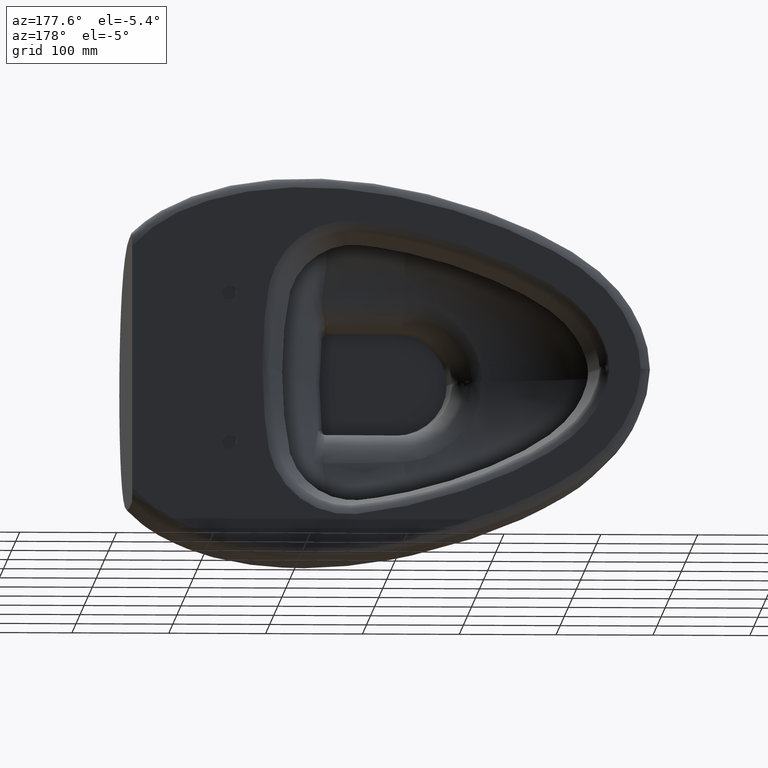
[diagram: clean part render]
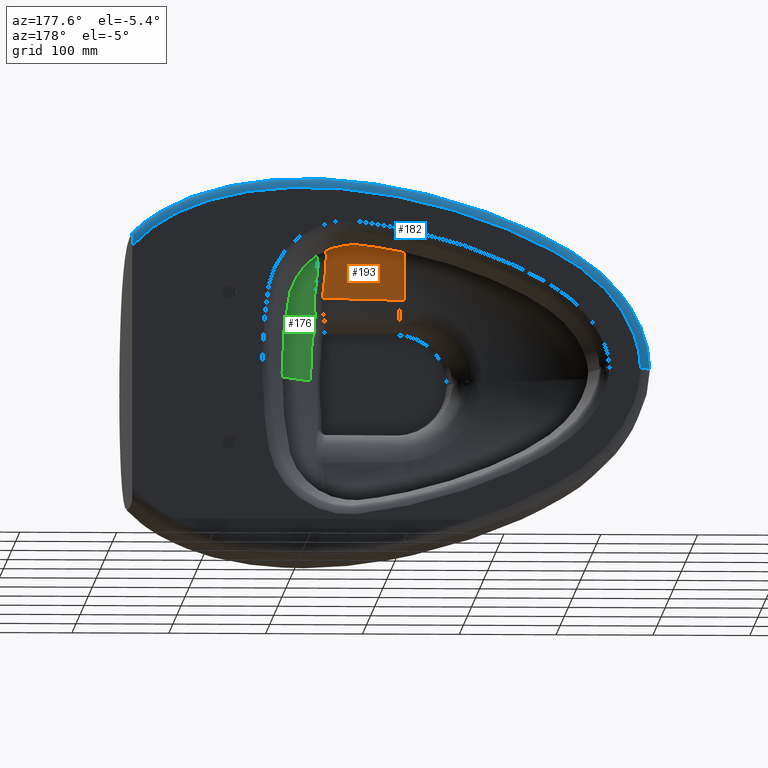
[diagram: same view with three faces highlighted in distinct colors, each labeled with its STEP entity id]
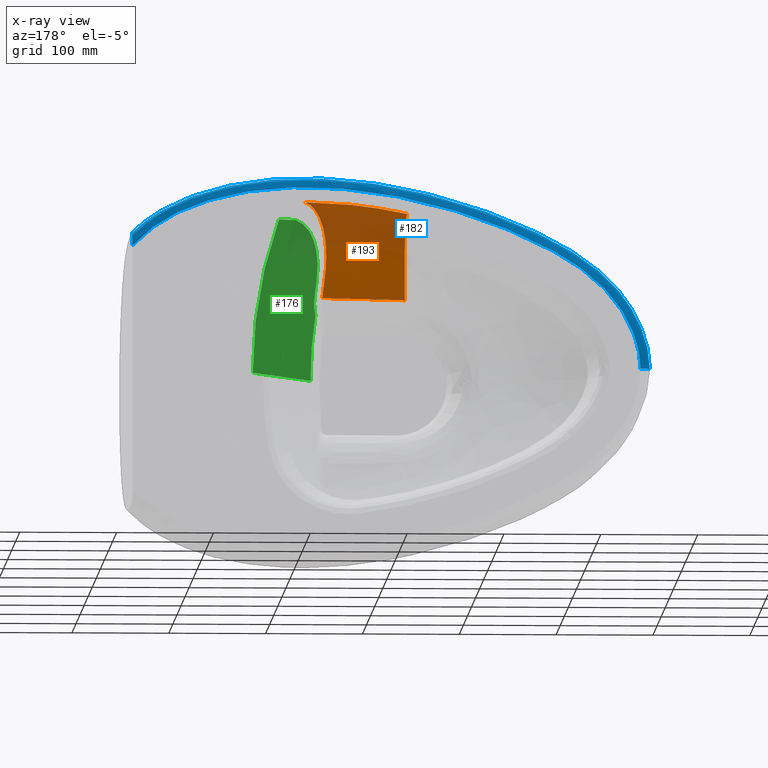
[diagram: x-ray of the same camera — body ghosted, the three highlighted faces saturated]
A machine part, auxiliary view with three faces highlighted in distinct colors.
The next image is the same camera in x-ray (body ghosted, the three faces saturated) — at least one of them is partly hidden behind the body in this view.
Their STEP definitions:

[orange] entity #193 — the highlighted face is a freeform B-spline surface patch.
#100=(
BOUNDED_CURVE()
B_SPLINE_CURVE(3,(#10870,#10871,#10872,#10873,#10874,#10875,#10876,#10877,
#10878,#10879,#10880,#10881,#10882,#10883,#10884,#10885,#10886,#10887,#10888,
#10889,#10890,#10891,#10892,#10893,#10894,#10895,#10896,#10897,#10898,#10899,
#10900,#10901,#10902,#10903,#10904,#10905,#10906,#10907,#10908,#10909),
 .UNSPECIFIED.,.F.,.F.)
B_SPLINE_CURVE_WITH_KNOTS((4,2,2,2,2,2,2,2,2,2,2,2,2,2,2,2,2,2,2,4),(0.,
0.0733649373105409,0.146729874621082,0.220094811931623,0.256777280586894,
0.293459749242164,0.366824686552705,0.440189623863246,0.586919498484329,
0.66028443579487,0.733649373105411,0.807014310415952,0.880379247726493,
0.917061716381763,0.953744185037034,0.972085419364669,0.990426653692304,
0.995011962274214,0.999597270856123,1.),.UNSPECIFIED.)
CURVE()
GEOMETRIC_REPRESENTATION_ITEM()
RATIONAL_B_SPLINE_CURVE((1.,1.,1.,1.,1.,1.,1.,1.,1.,1.,1.,1.,1.,1.,1.,1.,
1.,1.,1.,1.,1.,1.,1.,1.,1.,1.,1.,1.,1.,1.,1.,1.,1.,1.,1.,1.,1.,1.,1.,1.))
REPRESENTATION_ITEM('')
);
#106=(
BOUNDED_CURVE()
B_SPLINE_CURVE(3,(#11148,#11149,#11150,#11151),.UNSPECIFIED.,.F.,.F.)
B_SPLINE_CURVE_WITH_KNOTS((4,4),(0.,1.),.UNSPECIFIED.)
CURVE()
GEOMETRIC_REPRESENTATION_ITEM()
RATIONAL_B_SPLINE_CURVE((0.999999925909502,0.999999925314663,0.99999992470518,
0.999999924082911))
REPRESENTATION_ITEM('')
);
#193=ADVANCED_FACE('',(#287),#228,.F.);
#228=B_SPLINE_SURFACE_WITH_KNOTS('',3,3,((#11168,#11169,#11170,#11171,#11172,
#11173,#11174,#11175,#11176,#11177,#11178,#11179,#11180,#11181,#11182,#11183,
#11184,#11185,#11186,#11187,#11188,#11189,#11190,#11191,#11192,#11193,#11194,
#11195),(#11196,#11197,#11198,#11199,#11200,#11201,#11202,#11203,#11204,
#11205,#11206,#11207,#11208,#11209,#11210,#11211,#11212,#11213,#11214,#11215,
#11216,#11217,#11218,#11219,#11220,#11221,#11222,#11223),(#11224,#11225,
#11226,#11227,#11228,#11229,#11230,#11231,#11232,#11233,#11234,#11235,#11236,
#11237,#11238,#11239,#11240,#11241,#11242,#11243,#11244,#11245,#11246,#11247,
#11248,#11249,#11250,#11251),(#11252,#11253,#11254,#11255,#11256,#11257,
#11258,#11259,#11260,#11261,#11262,#11263,#11264,#11265,#11266,#11267,#11268,
#11269,#11270,#11271,#11272,#11273,#11274,#11275,#11276,#11277,#11278,#11279),
(#11280,#11281,#11282,#11283,#11284,#11285,#11286,#11287,#11288,#11289,
#11290,#11291,#11292,#11293,#11294,#11295,#11296,#11297,#11298,#11299,#11300,
#11301,#11302,#11303,#11304,#11305,#11306,#11307),(#11308,#11309,#11310,
#11311,#11312,#11313,#11314,#11315,#11316,#11317,#11318,#11319,#11320,#11321,
#11322,#11323,#11324,#11325,#11326,#11327,#11328,#11329,#11330,#11331,#11332,
#11333,#11334,#11335)),.UNSPECIFIED.,.F.,.F.,.F.,(4,2,4),(4,2,2,2,2,2,2,
2,2,2,2,2,2,4),(0.,0.5,1.),(0.,0.03125,0.0625,0.125,0.25,0.375,0.5,0.625,
0.75,0.8125,0.875,0.90625,0.9375,1.),.UNSPECIFIED.);
#287=FACE_OUTER_BOUND('',#359,.T.);
#359=EDGE_LOOP('',(#652,#653,#654,#655,#656));
#652=ORIENTED_EDGE('',*,*,#906,.F.);
#653=ORIENTED_EDGE('',*,*,#905,.F.);
#654=ORIENTED_EDGE('',*,*,#890,.F.);
#655=ORIENTED_EDGE('',*,*,#895,.F.);
#656=ORIENTED_EDGE('',*,*,#898,.F.);
#748=VERTEX_POINT('',#9310);
#749=VERTEX_POINT('',#9345);
#751=VERTEX_POINT('',#10717);
#752=VERTEX_POINT('',#10869);
#755=VERTEX_POINT('',#11147);
#890=EDGE_CURVE('',#748,#749,#1017,.T.);
#895=EDGE_CURVE('',#751,#748,#1020,.T.);
#898=EDGE_CURVE('',#752,#751,#100,.T.);
#905=EDGE_CURVE('',#749,#755,#106,.T.);
#906=EDGE_CURVE('',#755,#752,#1022,.T.);
#1017=B_SPLINE_CURVE_WITH_KNOTS('',3,(#9311,#9312,#9313,#9314,#9315,#9316,
#9317,#9318,#9319,#9320,#9321,#9322,#9323,#9324,#9325,#9326,#9327,#9328,
#9329,#9330,#9331,#9332,#9333,#9334,#9335,#9336,#9337,#9338,#9339,#9340,
#9341,#9342,#9343,#9344),.UNSPECIFIED.,.F.,.F.,(4,2,2,2,2,2,2,2,2,2,2,2,
2,2,2,2,4),(0.,0.0020389113980777,0.0104953791248942,0.027408314578527,
0.0612341854857928,0.128885927300324,0.264189410929388,0.331841152743919,
0.365667023651185,0.399492894558451,0.433318765465717,0.467144636372982,
0.534796378187514,0.80540334544564,0.873055087260172,0.940706829074703,
1.),.UNSPECIFIED.);
#1020=B_SPLINE_CURVE_WITH_KNOTS('',3,(#10711,#10712,#10713,#10714,#10715,
#10716),.UNSPECIFIED.,.F.,.F.,(4,2,4),(0.,0.5,1.),.UNSPECIFIED.);
#1022=B_SPLINE_CURVE_WITH_KNOTS('',3,(#11164,#11165,#11166,#11167),
 .UNSPECIFIED.,.F.,.F.,(4,4),(0.,1.),.UNSPECIFIED.);
#9310=CARTESIAN_POINT('',(181.477831717814,362.400251245097,130.001069766108));
#9311=CARTESIAN_POINT('',(181.477619092896,362.400258518679,130.00107034649));
#9312=CARTESIAN_POINT('',(181.477764952534,362.303139636006,130.001021376723));
#9313=CARTESIAN_POINT('',(181.477910684449,362.20602075335,130.000972386122));
#9314=CARTESIAN_POINT('',(181.478660189656,361.706097365586,130.000720097972));
#9315=CARTESIAN_POINT('',(181.479289064875,361.304039475803,130.000448256106));
#9316=CARTESIAN_POINT('',(181.481061036807,360.092091814826,129.999934653857));
#9317=CARTESIAN_POINT('',(181.482001609412,359.272937199923,130.00072811914));
#9318=CARTESIAN_POINT('',(181.486307323191,356.853601146206,130.008136074406));
#9319=CARTESIAN_POINT('',(181.49133761287,355.302339729324,130.011737310897));
#9320=CARTESIAN_POINT('',(181.502717293438,350.747046735134,129.885793774286));
#9321=CARTESIAN_POINT('',(181.5039047704,347.6970056119,129.633008993532));
#9322=CARTESIAN_POINT('',(181.490166626458,338.638581811718,128.391194612539));
#9323=CARTESIAN_POINT('',(181.455878130694,332.694421787433,126.904652796953));
#9324=CARTESIAN_POINT('',(181.390471349515,324.114264495252,123.747154943812));
#9325=CARTESIAN_POINT('',(181.366634718712,321.310149477724,122.541114976472));
#9326=CARTESIAN_POINT('',(181.333060829207,317.213457695841,120.514180215908));
#9327=CARTESIAN_POINT('',(181.322218940559,315.866135443275,119.802204984755));
#9328=CARTESIAN_POINT('',(181.302281848958,313.212103796326,118.307597671317));
#9329=CARTESIAN_POINT('',(181.293348714855,311.90542136821,117.525018498533));
#9330=CARTESIAN_POINT('',(181.277405603107,309.336709256736,115.890966231441));
#9331=CARTESIAN_POINT('',(181.269449005622,308.07436077022,115.039092197716));
#9332=CARTESIAN_POINT('',(181.249511975407,305.597190016369,113.267702878274));
#9333=CARTESIAN_POINT('',(181.238498873925,304.382300719976,112.348375058987));
#9334=CARTESIAN_POINT('',(181.205159846884,300.813742669422,109.494605744216));
#9335=CARTESIAN_POINT('',(181.181681782424,298.536289198797,107.464232342723));
#9336=CARTESIAN_POINT('',(181.054912467029,287.726570982053,96.7357646565077));
#9337=CARTESIAN_POINT('',(180.927161886108,280.969363937749,86.2784500850996));
#9338=CARTESIAN_POINT('',(180.725284852497,275.608219820516,72.0297206576874));
#9339=CARTESIAN_POINT('',(180.68281375739,274.686798987317,69.1214001850093));
#9340=CARTESIAN_POINT('',(180.589372920416,273.166913295598,63.2338985931106));
#9341=CARTESIAN_POINT('',(180.531858291844,272.597482198514,60.2803108403019));
#9342=CARTESIAN_POINT('',(180.46831334866,271.683758124797,54.467030805754));
#9343=CARTESIAN_POINT('',(180.446702697215,271.300941673593,51.7028223586895));
#9344=CARTESIAN_POINT('',(180.424656047957,270.955867803521,48.9456696265172));
#9345=CARTESIAN_POINT('',(180.424775902634,270.957003627898,48.9455343420944));
#10711=CARTESIAN_POINT('',(287.33892159765,358.723215450904,142.047879125219));
#10712=CARTESIAN_POINT('',(269.541174382264,359.378125244022,142.024237732716));
#10713=CARTESIAN_POINT('',(251.766151398022,360.009768694857,140.865522292913));
#10714=CARTESIAN_POINT('',(216.431453431081,361.213044882154,136.746659590526));
#10715=CARTESIAN_POINT('',(198.871725706915,361.810019205169,133.769498734246));
#10716=CARTESIAN_POINT('',(181.477868064864,362.400268680662,130.000904737965));
#10717=CARTESIAN_POINT('',(287.338919787826,358.723180318954,142.048268379986));
#10869=CARTESIAN_POINT('',(265.414819079687,272.497294175486,50.9283604843085));
#10870=CARTESIAN_POINT('',(265.414819079688,272.497294175486,50.9283604843085));
#10871=CARTESIAN_POINT('',(264.975816163034,272.713174832521,54.2199689541216));
#10872=CARTESIAN_POINT('',(264.536234103116,272.987229206952,57.4892975845149));
#10873=CARTESIAN_POINT('',(263.726592540876,273.705596689773,64.0508921599364));
#10874=CARTESIAN_POINT('',(263.345748063014,274.15446598759,67.3718202506522));
#10875=CARTESIAN_POINT('',(262.606525400522,275.315370930929,74.0181926875443));
#10876=CARTESIAN_POINT('',(262.252084294855,276.016704837497,77.3376620948346));
#10877=CARTESIAN_POINT('',(261.89731498802,277.445585953719,82.3888190610239));
#10878=CARTESIAN_POINT('',(261.813726678428,277.98771168398,84.067877549119));
#10879=CARTESIAN_POINT('',(261.710726156362,279.171762190184,87.340588295798));
#10880=CARTESIAN_POINT('',(261.688274724002,279.812640577679,88.944985598095));
#10881=CARTESIAN_POINT('',(261.69643371913,281.881507141924,93.7025357138482));
#10882=CARTESIAN_POINT('',(261.8045542759,283.454721445841,96.7909281967476));
#10883=CARTESIAN_POINT('',(262.24140050217,286.999569206944,102.797733376203));
#10884=CARTESIAN_POINT('',(262.573282601158,288.984198536514,105.731369159623));
#10885=CARTESIAN_POINT('',(263.876542340387,295.405364201731,114.055228793873));
#10886=CARTESIAN_POINT('',(265.148547033961,300.257807956924,118.95895742701));
#10887=CARTESIAN_POINT('',(267.609697670749,308.414355318839,125.402714380358));
#10888=CARTESIAN_POINT('',(268.53279414196,311.272469174767,127.38446947011));
#10889=CARTESIAN_POINT('',(270.546865161105,317.06804940439,130.937850975312));
#10890=CARTESIAN_POINT('',(271.635951218961,320.024960653863,132.526417559343));
#10891=CARTESIAN_POINT('',(273.962745651446,326.1023046778,135.369027309506));
#10892=CARTESIAN_POINT('',(275.198293994576,329.221316094699,136.622084695502));
#10893=CARTESIAN_POINT('',(277.786833147978,335.674461109114,138.782263417387));
#10894=CARTESIAN_POINT('',(279.138765456051,339.004429868386,139.686206099224));
#10895=CARTESIAN_POINT('',(281.181945538328,344.111925913668,140.726580278992));
#10896=CARTESIAN_POINT('',(281.867658175166,345.836639448351,141.021735657725));
#10897=CARTESIAN_POINT('',(283.243894115022,349.341834875985,141.499854917989));
#10898=CARTESIAN_POINT('',(283.93291103258,351.121759964321,141.679087802389));
#10899=CARTESIAN_POINT('',(284.978645897386,353.703753828991,141.859791546235));
#10900=CARTESIAN_POINT('',(285.329035712282,354.552279612281,141.905140709798));
#10901=CARTESIAN_POINT('',(286.039990929032,356.10991556358,141.973966604171));
#10902=CARTESIAN_POINT('',(286.400499670077,356.841289972307,142.000125528227));
#10903=CARTESIAN_POINT('',(286.856602100946,357.791904840897,142.0266048215));
#10904=CARTESIAN_POINT('',(286.948094994786,357.982666356071,142.031511221374));
#10905=CARTESIAN_POINT('',(287.131603806223,358.365594280585,142.040497373215));
#10906=CARTESIAN_POINT('',(287.223310083049,358.524545587653,142.043869849242));
#10907=CARTESIAN_POINT('',(287.322848340905,358.695566213666,142.047656873263));
#10908=CARTESIAN_POINT('',(287.330884361672,358.70937359183,142.047962628979));
#10909=CARTESIAN_POINT('',(287.338919787826,358.723180318953,142.048268379993));
#11147=CARTESIAN_POINT('',(185.4267433941,271.002428619538,49.3130876392372));
#11148=CARTESIAN_POINT('',(180.424764569027,270.958757605897,48.9529795575734));
#11149=CARTESIAN_POINT('',(182.092886547579,270.977664617426,49.1190310621102));
#11150=CARTESIAN_POINT('',(183.760038065514,270.991932274274,49.2390755745105));
#11151=CARTESIAN_POINT('',(185.426743379806,271.002427750254,49.3130803090099));
#11164=CARTESIAN_POINT('',(185.4267433941,271.002428619538,49.3130876392382));
#11165=CARTESIAN_POINT('',(212.01262733199,271.169842975057,50.4935456451162));
#11166=CARTESIAN_POINT('',(238.732501920934,271.674968613628,50.9753958675852));
#11167=CARTESIAN_POINT('',(265.414819173862,272.497291131901,50.928360696481));
#11168=CARTESIAN_POINT('',(305.112678743244,359.147907332884,141.725944059747));
#11169=CARTESIAN_POINT('',(304.140365693269,357.815456568267,141.711977126894));
#11170=CARTESIAN_POINT('',(303.171025937734,356.55488017314,141.699859300723));
#11171=CARTESIAN_POINT('',(301.245865571992,354.020076115581,141.602064886392));
#11172=CARTESIAN_POINT('',(300.289462461324,352.751143060698,141.525485165171));
#11173=CARTESIAN_POINT('',(297.452031578498,348.930594591201,141.207431314794));
#11174=CARTESIAN_POINT('',(295.602005569158,346.36692025741,140.877836075318));
#11175=CARTESIAN_POINT('',(290.205679261798,338.642202459824,139.512401374298));
#11176=CARTESIAN_POINT('',(286.809111073557,333.442374399054,138.097862061697));
#11177=CARTESIAN_POINT('',(280.539508366694,323.177981547194,134.185014687138));
#11178=CARTESIAN_POINT('',(277.664717302627,318.112555132131,131.684727161095));
#11179=CARTESIAN_POINT('',(272.545441560182,308.37749782106,125.557855562598));
#11180=CARTESIAN_POINT('',(270.306269115855,303.708691912897,121.929094564368));
#11181=CARTESIAN_POINT('',(266.653082575682,295.089073196263,113.588660184036));
#11182=CARTESIAN_POINT('',(265.22791254764,291.143113401948,108.878990126222));
#11183=CARTESIAN_POINT('',(263.258413533996,284.298226718048,98.5967549133475));
#11184=CARTESIAN_POINT('',(262.711144281605,281.399587799312,93.0211913864092));
#11185=CARTESIAN_POINT('',(262.563450979575,278.040117050821,84.2904850188029));
#11186=CARTESIAN_POINT('',(262.640118793942,277.116648173287,81.3593405363023));
#11187=CARTESIAN_POINT('',(263.025177133347,275.596340739294,75.2962387120004));
#11188=CARTESIAN_POINT('',(263.317340906911,274.985514338746,72.1864187805268));
#11189=CARTESIAN_POINT('',(263.841137595714,274.223557142476,67.4861014607632));
#11190=CARTESIAN_POINT('',(264.0307705123,273.995939916411,65.9120430557818));
#11191=CARTESIAN_POINT('',(264.430790817891,273.58532237525,62.7523915991924));
#11192=CARTESIAN_POINT('',(264.640584479449,273.402339288117,61.1665473534406));
#11193=CARTESIAN_POINT('',(265.27990801935,272.909368303084,56.3944145774418));
#11194=CARTESIAN_POINT('',(265.722435949147,272.655305415148,53.1948812109593));
#11195=CARTESIAN_POINT('',(266.171596192071,272.456693528016,49.9854339815505));
#11196=CARTESIAN_POINT('',(284.423575505002,359.751452162777,142.582169333482));
#11197=CARTESIAN_POINT('',(283.615205952554,358.388760453094,142.544643596576));
#11198=CARTESIAN_POINT('',(282.808571670173,357.06775914429,142.505397802038));
#11199=CARTESIAN_POINT('',(281.202303049448,354.416320998176,142.384355625801));
#11200=CARTESIAN_POINT('',(280.404283842048,353.124937990283,142.307202606896));
#11201=CARTESIAN_POINT('',(278.038283350106,349.236103230024,141.975805093441));
#11202=CARTESIAN_POINT('',(276.49806502244,346.651498344741,141.627024507113));
#11203=CARTESIAN_POINT('',(272.01058287147,338.849242211169,140.151952288029));
#11204=CARTESIAN_POINT('',(269.193013078996,333.618393270001,138.610296335617));
#11205=CARTESIAN_POINT('',(263.983908439238,323.318367809961,134.449508192021));
#11206=CARTESIAN_POINT('',(261.589201280779,318.242498736471,131.834304137425));
#11207=CARTESIAN_POINT('',(257.302016676139,308.42919616906,125.591899337077));
#11208=CARTESIAN_POINT('',(255.417353985177,303.74382371587,121.983565920043));
#11209=CARTESIAN_POINT('',(252.342681010922,295.077595996712,113.645457426229));
#11210=CARTESIAN_POINT('',(251.138805411612,291.091351319215,108.951603249298));
#11211=CARTESIAN_POINT('',(249.470715529262,284.148661798996,98.7120740721136));
#11212=CARTESIAN_POINT('',(249.003962958327,281.185842330319,93.161125391281));
#11213=CARTESIAN_POINT('',(248.869142911044,277.721010107315,84.4460811706866));
#11214=CARTESIAN_POINT('',(248.928291334153,276.750407718931,81.5031302748581));
#11215=CARTESIAN_POINT('',(249.244307869273,275.141008631908,75.4489971517301));
#11216=CARTESIAN_POINT('',(249.487436784695,274.494606534226,72.3607276623565));
#11217=CARTESIAN_POINT('',(249.922986460932,273.73093526313,67.6790006201087));
#11218=CARTESIAN_POINT('',(250.080566764761,273.51121908422,66.1125066480548));
#11219=CARTESIAN_POINT('',(250.412343009272,273.123413835642,62.9456103503753));
#11220=CARTESIAN_POINT('',(250.586139246991,272.953138611425,61.3412060339106));
#11221=CARTESIAN_POINT('',(251.116307370554,272.477517683407,56.5119275577674));
#11222=CARTESIAN_POINT('',(251.483852951933,272.219653027231,53.3000036255225));
#11223=CARTESIAN_POINT('',(251.856949221879,272.016940835606,50.0757121149629));
#11224=CARTESIAN_POINT('',(263.650602913689,360.426047019787,141.805200846597));
#11225=CARTESIAN_POINT('',(263.006424407757,359.033059150783,141.759043381289));
#11226=CARTESIAN_POINT('',(262.363351864072,357.659380963635,141.710901825563));
#11227=CARTESIAN_POINT('',(261.080345014989,354.905306698244,141.596403173661));
#11228=CARTESIAN_POINT('',(260.443032649382,353.586623448762,141.52750812678));
#11229=CARTESIAN_POINT('',(258.553963630754,349.617620549903,141.213180635959));
#11230=CARTESIAN_POINT('',(257.325093590432,346.998818610852,140.867606436881));
#11231=CARTESIAN_POINT('',(253.74648315455,339.088133643795,139.372065080198));
#11232=CARTESIAN_POINT('',(251.501743066814,333.805104317764,137.784393960819));
#11233=CARTESIAN_POINT('',(247.345967619608,323.434293984036,133.534523672795));
#11234=CARTESIAN_POINT('',(245.431815318777,318.336791288264,130.878772688121));
#11235=CARTESIAN_POINT('',(241.994365525535,308.465502442594,124.623189998477));
#11236=CARTESIAN_POINT('',(240.474627538884,303.772576284774,121.052251059711));
#11237=CARTESIAN_POINT('',(237.994803289204,295.089440151967,112.788277447504));
#11238=CARTESIAN_POINT('',(237.021072994855,291.088358332576,108.148207962322));
#11239=CARTESIAN_POINT('',(235.666828552964,284.099387346987,98.0369179887353));
#11240=CARTESIAN_POINT('',(235.284845570505,281.100994963885,92.5594703879298));
#11241=CARTESIAN_POINT('',(235.165931541277,277.561680848239,83.9451001187069));
#11242=CARTESIAN_POINT('',(235.209591443999,276.554659564806,81.0242844722405));
#11243=CARTESIAN_POINT('',(235.455978114903,274.87042474567,75.0385145945052));
#11244=CARTESIAN_POINT('',(235.647284057061,274.1901163026,71.9950868366595));
#11245=CARTESIAN_POINT('',(235.990885294793,273.405174598709,67.3727423366911));
#11246=CARTESIAN_POINT('',(236.115177014574,273.183354839225,65.8272847891405));
#11247=CARTESIAN_POINT('',(236.378112126912,272.796740631871,62.6879453740575));
#11248=CARTESIAN_POINT('',(236.516659980618,272.628567856898,61.0879516382836));
#11249=CARTESIAN_POINT('',(236.940433482099,272.147204883094,56.2688296885241));
#11250=CARTESIAN_POINT('',(237.234026082727,271.875637748759,53.0748579196663));
#11251=CARTESIAN_POINT('',(237.532107930616,271.657832491013,49.8684773344822));
#11252=CARTESIAN_POINT('',(222.332570200727,361.840793272631,137.717436495867));
#11253=CARTESIAN_POINT('',(222.014040733991,360.387045355036,137.677261597071));
#11254=CARTESIAN_POINT('',(221.695547317653,358.925470990976,137.634679822151));
#11255=CARTESIAN_POINT('',(221.05773985278,356.001381666799,137.562025400638));
#11256=CARTESIAN_POINT('',(220.741923567115,354.621349509588,137.521626845299));
#11257=CARTESIAN_POINT('',(219.805235911087,350.476115181396,137.286650021065));
#11258=CARTESIAN_POINT('',(219.195881026711,347.765430206516,136.987687175211));
#11259=CARTESIAN_POINT('',(217.41781582808,339.585436001604,135.6024857468));
#11260=CARTESIAN_POINT('',(216.298217536822,334.160822420318,134.060816881757));
#11261=CARTESIAN_POINT('',(214.212444357437,323.59006121049,129.902000147599));
#11262=CARTESIAN_POINT('',(213.244786365321,318.434058420852,127.290618515338));
#11263=CARTESIAN_POINT('',(211.500718373907,308.504821592913,121.165494736929));
#11264=CARTESIAN_POINT('',(210.720908764546,303.815677874809,117.681337907671));
#11265=CARTESIAN_POINT('',(209.436253638746,295.160157502856,109.662150213967));
#11266=CARTESIAN_POINT('',(208.925163179819,291.18086970252,105.181152528408));
#11267=CARTESIAN_POINT('',(208.196992150362,284.199968224773,95.4453067702691));
#11268=CARTESIAN_POINT('',(207.980287502703,281.185862750013,90.1852099852216));
#11269=CARTESIAN_POINT('',(207.880606979144,277.556867186507,81.8994318511642));
#11270=CARTESIAN_POINT('',(207.888740101285,276.497780207396,79.0746374821049));
#11271=CARTESIAN_POINT('',(207.983794935405,274.69100993003,73.3159216067303));
#11272=CARTESIAN_POINT('',(208.0643985513,273.945130960884,70.3968110826537));
#11273=CARTESIAN_POINT('',(208.211753760344,273.082115483925,65.9586029152266));
#11274=CARTESIAN_POINT('',(208.265182602966,272.838419708429,64.4771046758016));
#11275=CARTESIAN_POINT('',(208.382178526702,272.413072287264,61.4501543350131));
#11276=CARTESIAN_POINT('',(208.446104098486,272.226939017202,59.8974696706058));
#11277=CARTESIAN_POINT('',(208.646000489787,271.685428849603,55.2104670125559));
#11278=CARTESIAN_POINT('',(208.78653365149,271.366983001158,52.0988771693968));
#11279=CARTESIAN_POINT('',(208.92896789158,271.09709209688,48.9797887800764));
#11280=CARTESIAN_POINT('',(201.791947182935,362.578069228826,134.397097187648));
#11281=CARTESIAN_POINT('',(201.634916067623,361.093866160438,134.371646533369));
#11282=CARTESIAN_POINT('',(201.477617748822,359.59686733512,134.343834784594));
#11283=CARTESIAN_POINT('',(201.162221062433,356.604713235482,134.307005940012));
#11284=CARTESIAN_POINT('',(201.007224842627,355.190637132449,134.286751132539));
#11285=CARTESIAN_POINT('',(200.546028737965,350.949446819937,134.11386585327));
#11286=CARTESIAN_POINT('',(200.244715155439,348.181406389914,133.858101473593));
#11287=CARTESIAN_POINT('',(199.358164249924,339.841087670514,132.603536526491));
#11288=CARTESIAN_POINT('',(198.790813670653,334.327293837117,131.154057275205));
#11289=CARTESIAN_POINT('',(197.721382636119,323.627707586365,127.175817059045));
#11290=CARTESIAN_POINT('',(197.219388036911,318.434934563855,124.649628319375));
#11291=CARTESIAN_POINT('',(196.318543283718,308.506055313352,118.668621902299));
#11292=CARTESIAN_POINT('',(195.913255851177,303.828644305141,115.234217039219));
#11293=CARTESIAN_POINT('',(195.227974130353,295.218192458315,107.386472884702));
#11294=CARTESIAN_POINT('',(194.948901100003,291.275762016268,103.01117870079));
#11295=CARTESIAN_POINT('',(194.531952463866,284.349583002596,93.523467687933));
#11296=CARTESIAN_POINT('',(194.395266154173,281.35547652522,88.4077127754835));
#11297=CARTESIAN_POINT('',(194.298270388609,277.711469504604,80.3506064844998));
#11298=CARTESIAN_POINT('',(194.286206579126,276.636783838508,77.5999828795438));
#11299=CARTESIAN_POINT('',(194.299206638416,274.782428960867,72.000435808431));
#11300=CARTESIAN_POINT('',(194.320701829342,274.005026943554,69.1609684343827));
#11301=CARTESIAN_POINT('',(194.363531734152,273.085328084984,64.8477102654308));
#11302=CARTESIAN_POINT('',(194.379322059219,272.821873357768,63.4091924885817));
#11303=CARTESIAN_POINT('',(194.419200775341,272.356547950014,60.4672597980145));
#11304=CARTESIAN_POINT('',(194.443809878021,272.150271051708,58.9575956964516));
#11305=CARTESIAN_POINT('',(194.526424042012,271.554163313841,54.3929190954656));
#11306=CARTESIAN_POINT('',(194.587909011307,271.20257250011,51.3459760138609));
#11307=CARTESIAN_POINT('',(194.649789121762,270.895675446246,48.2964863696741));
#11308=CARTESIAN_POINT('',(181.476451731326,363.327914970524,130.001540278732));
#11309=CARTESIAN_POINT('',(181.478694464568,361.813201989491,130.000769398939));
#11310=CARTESIAN_POINT('',(181.480588468917,360.288466857038,129.997876629799));
#11311=CARTESIAN_POINT('',(181.485605749254,357.243612662585,130.0075040214));
#11312=CARTESIAN_POINT('',(181.49045650004,355.793028584715,130.010676210798));
#11313=CARTESIAN_POINT('',(181.500909365177,351.450464819798,129.915336068548));
#11314=CARTESIAN_POINT('',(181.503913490042,348.616039191186,129.718891091309));
#11315=CARTESIAN_POINT('',(181.494893344422,340.094917903415,128.660498355256));
#11316=CARTESIAN_POINT('',(181.466852806658,334.475536958317,127.367724069562));
#11317=CARTESIAN_POINT('',(181.388881709419,323.620234532169,123.692553696813));
#11318=CARTESIAN_POINT('',(181.340956598608,318.383572711263,121.306096705353));
#11319=CARTESIAN_POINT('',(181.267743682708,308.487359155279,115.533436005099));
#11320=CARTESIAN_POINT('',(181.238415139733,303.83284584042,112.149687912572));
#11321=CARTESIAN_POINT('',(181.146772054059,295.299655841457,104.509754048126));
#11322=CARTESIAN_POINT('',(181.096140869409,291.420505326765,100.259974406261));
#11323=CARTESIAN_POINT('',(180.982031566044,284.598367041287,91.0662314471292));
#11324=CARTESIAN_POINT('',(180.919817020036,281.650855974706,86.1224211832019));
#11325=CARTESIAN_POINT('',(180.814465274157,278.019189365906,78.3445384917823));
#11326=CARTESIAN_POINT('',(180.777647346897,276.939152103447,75.6897373643304));
#11327=CARTESIAN_POINT('',(180.699879113144,275.048730922777,70.2847895748781));
#11328=CARTESIAN_POINT('',(180.658743882974,274.237845775185,67.5355059787816));
#11329=CARTESIAN_POINT('',(180.589901376414,273.241133818467,63.3711166096764));
#11330=CARTESIAN_POINT('',(180.5655093018,272.948626788365,61.9839093020359));
#11331=CARTESIAN_POINT('',(180.522075093525,272.42384835304,59.1525255072856));
#11332=CARTESIAN_POINT('',(180.503465198476,272.188175782213,57.7050999001612));
#11333=CARTESIAN_POINT('',(180.45792452287,271.517651768174,53.3185484980186));
#11334=CARTESIAN_POINT('',(180.435897504771,271.122691634709,50.3554999896467));
#11335=CARTESIAN_POINT('',(180.412256823366,270.768223905066,47.3982243396899));

[blue] entity #182 — the highlighted face is a freeform B-spline surface patch.
#66=(
BOUNDED_SURFACE()
B_SPLINE_SURFACE(3,2,((#9055,#9056,#9057,#9058,#9059),(#9060,#9061,#9062,
#9063,#9064),(#9065,#9066,#9067,#9068,#9069),(#9070,#9071,#9072,#9073,#9074),
(#9075,#9076,#9077,#9078,#9079),(#9080,#9081,#9082,#9083,#9084),(#9085,
#9086,#9087,#9088,#9089),(#9090,#9091,#9092,#9093,#9094),(#9095,#9096,#9097,
#9098,#9099),(#9100,#9101,#9102,#9103,#9104),(#9105,#9106,#9107,#9108,#9109),
(#9110,#9111,#9112,#9113,#9114),(#9115,#9116,#9117,#9118,#9119),(#9120,
#9121,#9122,#9123,#9124),(#9125,#9126,#9127,#9128,#9129),(#9130,#9131,#9132,
#9133,#9134),(#9135,#9136,#9137,#9138,#9139),(#9140,#9141,#9142,#9143,#9144),
(#9145,#9146,#9147,#9148,#9149),(#9150,#9151,#9152,#9153,#9154),(#9155,
#9156,#9157,#9158,#9159),(#9160,#9161,#9162,#9163,#9164),(#9165,#9166,#9167,
#9168,#9169),(#9170,#9171,#9172,#9173,#9174),(#9175,#9176,#9177,#9178,#9179),
(#9180,#9181,#9182,#9183,#9184),(#9185,#9186,#9187,#9188,#9189),(#9190,
#9191,#9192,#9193,#9194),(#9195,#9196,#9197,#9198,#9199),(#9200,#9201,#9202,
#9203,#9204),(#9205,#9206,#9207,#9208,#9209),(#9210,#9211,#9212,#9213,#9214),
(#9215,#9216,#9217,#9218,#9219),(#9220,#9221,#9222,#9223,#9224),(#9225,
#9226,#9227,#9228,#9229),(#9230,#9231,#9232,#9233,#9234),(#9235,#9236,#9237,
#9238,#9239),(#9240,#9241,#9242,#9243,#9244),(#9245,#9246,#9247,#9248,#9249),
(#9250,#9251,#9252,#9253,#9254),(#9255,#9256,#9257,#9258,#9259),(#9260,
#9261,#9262,#9263,#9264),(#9265,#9266,#9267,#9268,#9269),(#9270,#9271,#9272,
#9273,#9274),(#9275,#9276,#9277,#9278,#9279),(#9280,#9281,#9282,#9283,#9284),
(#9285,#9286,#9287,#9288,#9289),(#9290,#9291,#9292,#9293,#9294),(#9295,
#9296,#9297,#9298,#9299),(#9300,#9301,#9302,#9303,#9304)),.UNSPECIFIED.,
 .F.,.F.,.F.)
B_SPLINE_SURFACE_WITH_KNOTS((4,2,2,2,2,2,2,2,2,2,2,2,2,2,2,2,2,2,2,2,2,
2,2,2,4),(3,2,3),(0.,0.015625,0.03125,0.0625,0.09375,0.109375,0.125,0.1875,
0.21875,0.25,0.3125,0.375,0.4375,0.5,0.625,0.6875,0.71875,0.75,0.8125,0.84375,
0.875,0.9375,0.953125,0.96875,1.),(0.,0.0099009900990099,1.),
 .UNSPECIFIED.)
GEOMETRIC_REPRESENTATION_ITEM()
RATIONAL_B_SPLINE_SURFACE(((1.,1.,1.,0.707106781186528,1.),(1.,1.,1.,0.707106781186528,
1.),(1.,1.,1.,0.707106781186532,1.),(1.,1.,1.,0.707106781186532,1.),(1.,
1.,1.,0.707106781186536,1.),(1.,1.,1.,0.707106781186536,1.),(1.,1.,1.,0.707106781186536,
1.),(1.,1.,1.,0.707106781186536,1.),(1.,1.,1.,0.707106781186541,1.),(1.,
1.,1.,0.707106781186541,1.),(1.,1.,1.,0.707106781186543,1.),(1.,1.,1.,0.707106781186543,
1.),(1.,1.,1.,0.707106781186543,1.),(1.,1.,1.,0.707106781186543,1.),(1.,
1.,1.,0.70710678118655,1.),(1.,1.,1.,0.70710678118655,1.),(1.,1.,1.,0.70710678118655,
1.),(1.,1.,1.,0.70710678118655,1.),(1.,1.,1.,0.707106781186554,1.),(1.,
1.,1.,0.707106781186554,1.),(1.,1.,1.,0.70710678118656,1.),(1.,1.,1.,0.70710678118656,
1.),(1.,1.,1.,0.707106781186557,1.),(1.,1.,1.,0.707106781186557,1.),(1.,
1.,1.,0.707106781186561,1.),(1.,1.,1.,0.707106781186561,1.),(1.,1.,1.,0.707106781186557,
1.),(1.,1.,1.,0.707106781186557,1.),(1.,1.,1.,0.707106781186563,1.),(1.,
1.,1.,0.707106781186563,1.),(1.,1.,1.,0.707106781186564,1.),(1.,1.,1.,0.707106781186564,
1.),(1.,1.,1.,0.707106781186565,1.),(1.,1.,1.,0.707106781186565,1.),(1.,
1.,1.,0.707106781186566,1.),(1.,1.,1.,0.707106781186566,1.),(1.,1.,1.,0.707106781186568,
1.),(1.,1.,1.,0.707106781186568,1.),(1.,1.,1.,0.707106781186566,1.),(1.,
1.,1.,0.707106781186566,1.),(1.,1.,1.,0.70710678118657,1.),(1.,1.,1.,0.70710678118657,
1.),(1.,1.,1.,0.707106781186571,1.),(1.,1.,1.,0.707106781186571,1.),(1.,
1.,1.,0.707106781186574,1.),(1.,1.,1.,0.707106781186574,1.),(1.,1.,1.,0.707106781186574,
1.),(1.,1.,1.,0.707106781186574,1.),(1.,1.,1.,0.707106781186574,1.),(1.,
1.,1.,0.707106781186574,1.)))
REPRESENTATION_ITEM('')
SURFACE()
);
#79=(
BOUNDED_CURVE()
B_SPLINE_CURVE(2,(#3901,#3902,#3903),.UNSPECIFIED.,.F.,.F.)
B_SPLINE_CURVE_WITH_KNOTS((3,3),(0.,1.),.UNSPECIFIED.)
CURVE()
GEOMETRIC_REPRESENTATION_ITEM()
RATIONAL_B_SPLINE_CURVE((1.,0.707106781186528,1.))
REPRESENTATION_ITEM('')
);
#96=(
BOUNDED_CURVE()
B_SPLINE_CURVE(3,(#8893,#8894,#8895,#8896,#8897,#8898,#8899,#8900,#8901,
#8902,#8903,#8904,#8905,#8906,#8907,#8908,#8909,#8910,#8911,#8912,#8913,
#8914,#8915,#8916,#8917,#8918,#8919,#8920,#8921,#8922,#8923,#8924,#8925,
#8926,#8927,#8928,#8929,#8930,#8931,#8932,#8933,#8934,#8935,#8936,#8937,
#8938,#8939,#8940,#8941,#8942),.UNSPECIFIED.,.F.,.F.)
B_SPLINE_CURVE_WITH_KNOTS((4,2,2,2,2,2,2,2,2,2,2,2,2,2,2,2,2,2,2,2,2,2,
2,2,4),(0.,0.0159759441991335,0.031951888398267,0.063903776796534,0.095855665194801,
0.111831609393934,0.127807553593068,0.191711330389602,0.223663218787869,
0.255615107186136,0.31951888398267,0.383422660779204,0.447326437575738,
0.511230214372272,0.63903776796534,0.702941544761874,0.734893433160141,
0.766845321558408,0.830749098354942,0.862700986753209,0.894652875151476,
0.95855665194801,0.974532596147143,0.990508540346277,1.),.UNSPECIFIED.)
CURVE()
GEOMETRIC_REPRESENTATION_ITEM()
RATIONAL_B_SPLINE_CURVE((1.,1.,1.,1.,1.,1.,1.,1.,1.,1.,1.,1.,1.,1.,1.,1.,
1.,1.,1.,1.,1.,1.,1.,1.,1.,1.,1.,1.,1.,1.,1.,1.,1.,1.,1.,1.,1.,1.,1.,1.,
1.,1.,1.,1.,1.,1.,1.,1.,1.,1.))
REPRESENTATION_ITEM('')
);
#182=ADVANCED_FACE('',(#277),#66,.F.);
#277=FACE_OUTER_BOUND('',#347,.T.);
#347=EDGE_LOOP('',(#600,#601,#602,#603));
#600=ORIENTED_EDGE('',*,*,#848,.F.);
#601=ORIENTED_EDGE('',*,*,#888,.T.);
#602=ORIENTED_EDGE('',*,*,#819,.F.);
#603=ORIENTED_EDGE('',*,*,#887,.T.);
#710=VERTEX_POINT('',#3789);
#711=VERTEX_POINT('',#3904);
#725=VERTEX_POINT('',#6483);
#726=VERTEX_POINT('',#6504);
#819=EDGE_CURVE('',#710,#711,#79,.T.);
#848=EDGE_CURVE('',#725,#726,#985,.T.);
#887=EDGE_CURVE('',#710,#726,#96,.T.);
#888=EDGE_CURVE('',#725,#711,#1015,.T.);
#985=B_SPLINE_CURVE_WITH_KNOTS('',3,(#6484,#6485,#6486,#6487,#6488,#6489,
#6490,#6491,#6492,#6493,#6494,#6495,#6496,#6497,#6498,#6499,#6500,#6501,
#6502,#6503),.UNSPECIFIED.,.F.,.F.,(4,2,2,1,2,2,1,2,2,2,4),(0.,0.249999999999987,
0.312499999999985,0.374999999999983,0.499999999999982,0.562499999999982,
0.624999999999981,0.749999999999986,0.812499999999991,0.874999999999997,
1.),.UNSPECIFIED.);
#1015=B_SPLINE_CURVE_WITH_KNOTS('',3,(#9017,#9018,#9019,#9020,#9021,#9022,
#9023,#9024,#9025,#9026,#9027,#9028,#9029,#9030,#9031,#9032,#9033,#9034,
#9035,#9036,#9037,#9038,#9039,#9040,#9041,#9042,#9043,#9044,#9045,#9046,
#9047,#9048,#9049,#9050,#9051,#9052,#9053,#9054),.UNSPECIFIED.,.F.,.F.,
(4,2,2,2,2,2,2,2,2,2,2,2,2,2,2,2,2,2,4),(0.,0.03125,0.0625000000000001,
0.125,0.1875,0.25,0.3125,0.375,0.5,0.625,0.6875,0.75,0.78125,0.8125,0.875,
0.90625,0.9375,0.96875,1.),.UNSPECIFIED.);
#3789=CARTESIAN_POINT('',(-67.1264671881526,409.445535359124,-34.6856978603639));
#3901=CARTESIAN_POINT('',(-67.1264671913483,409.445535360289,-34.6846846846847));
#3902=CARTESIAN_POINT('',(-67.1264671913483,419.445535360289,-34.6846846846851));
#3903=CARTESIAN_POINT('',(-57.1264671913478,419.445535360289,-34.6846846846851));
#3904=CARTESIAN_POINT('',(-57.1264671884628,419.445535359166,-34.6856922284373));
#6483=CARTESIAN_POINT('',(467.873199259275,419.445727674407,90.703032421736));
#6484=CARTESIAN_POINT('',(467.873199259275,419.445727674408,90.7030324217361));
#6485=CARTESIAN_POINT('',(467.873194860324,419.445730210693,92.3566880178331));
#6486=CARTESIAN_POINT('',(467.873190626706,419.263025002579,93.9481916906725));
#6487=CARTESIAN_POINT('',(467.873185541349,418.80625881194,95.8598813776498));
#6488=CARTESIAN_POINT('',(467.873184392725,418.68879761385,96.2916729886109));
#6489=CARTESIAN_POINT('',(467.873182308054,418.444385329307,97.0753435933792));
#6490=CARTESIAN_POINT('',(467.873179262072,418.042169054165,98.2203905569434));
#6491=CARTESIAN_POINT('',(467.873176459166,417.533159234046,99.2740606897426));
#6492=CARTESIAN_POINT('',(467.87317381831,416.952953717275,100.266812935365));
#6493=CARTESIAN_POINT('',(467.873172745749,416.694481395557,100.67001064141));
#6494=CARTESIAN_POINT('',(467.873170949787,416.208594569585,101.345149792282));
#6495=CARTESIAN_POINT('',(467.873168412729,415.445751665294,102.298882548208));
#6496=CARTESIAN_POINT('',(467.873166346323,414.58087076501,103.075687392992));
#6497=CARTESIAN_POINT('',(467.873164593685,413.647964534064,103.734540297013));
#6498=CARTESIAN_POINT('',(467.873163971147,413.268102925939,103.968565507084));
#6499=CARTESIAN_POINT('',(467.87316299316,412.553563296893,104.336211375873));
#6500=CARTESIAN_POINT('',(467.873162580421,412.188390389947,104.491368651615));
#6501=CARTESIAN_POINT('',(467.873161570968,411.069162391836,104.870843502885));
#6502=CARTESIAN_POINT('',(467.87316119153,410.24736240832,105.01348273237));
#6503=CARTESIAN_POINT('',(467.873161192057,409.44574962282,105.013284987186));
#6504=CARTESIAN_POINT('',(467.873202338969,409.445749622758,105.013260586983));
#8893=CARTESIAN_POINT('',(-67.1264671886531,409.445535358735,-34.686711036043));
#8894=CARTESIAN_POINT('',(-67.1264772422751,409.445541155155,-30.9073491185788));
#8895=CARTESIAN_POINT('',(-66.8748052872465,409.445546735656,-27.2690640401292));
#8896=CARTESIAN_POINT('',(-66.0359780977198,409.44555771208,-20.112362169886));
#8897=CARTESIAN_POINT('',(-65.4421664523293,409.445563102623,-16.5978078973911));
#8898=CARTESIAN_POINT('',(-63.2079610683451,409.445579079821,-6.18073842940255));
#8899=CARTESIAN_POINT('',(-61.1063111261635,409.445589513667,0.622089953190214));
#8900=CARTESIAN_POINT('',(-55.8326688944857,409.445609802178,13.8501218595221));
#8901=CARTESIAN_POINT('',(-52.7051805211513,409.445619487796,20.1651098675973));
#8902=CARTESIAN_POINT('',(-47.3616018602334,409.445633405125,29.2391584777892));
#8903=CARTESIAN_POINT('',(-45.4710838682658,409.445637941576,32.1969080771311));
#8904=CARTESIAN_POINT('',(-41.4802470163963,409.445646815713,37.9828135387851));
#8905=CARTESIAN_POINT('',(-39.3724221213136,409.445651166712,40.8196503649947));
#8906=CARTESIAN_POINT('',(-28.4611665535312,409.445672186259,54.5243231233499));
#8907=CARTESIAN_POINT('',(-18.4972889391409,409.445686828796,64.0712117740019));
#8908=CARTESIAN_POINT('',(-2.25237892397115,409.445706218433,76.7131964859013));
#8909=CARTESIAN_POINT('',(3.39373465866891,409.445712273128,80.6608401572794));
#8910=CARTESIAN_POINT('',(14.8090988331836,409.445723545725,88.0105424643989));
#8911=CARTESIAN_POINT('',(20.585975368225,409.445728781613,91.4244451264252));
#8912=CARTESIAN_POINT('',(38.067669368276,409.445743675148,101.134639287073));
#8913=CARTESIAN_POINT('',(49.9331248692557,409.445752543204,106.916827774532));
#8914=CARTESIAN_POINT('',(74.0145137019071,409.445768901751,117.582564762477));
#8915=CARTESIAN_POINT('',(86.2316492608702,409.445776369192,122.451323234657));
#8916=CARTESIAN_POINT('',(110.999810183129,409.445790094956,131.400497393184));
#8917=CARTESIAN_POINT('',(123.56864038096,409.445796356447,135.48298208106));
#8918=CARTESIAN_POINT('',(148.97760449817,409.445807660348,142.853112535908));
#8919=CARTESIAN_POINT('',(161.734651450093,409.445812666292,146.116985601116));
#8920=CARTESIAN_POINT('',(200.182911107616,409.445825736248,154.638593558017));
#8921=CARTESIAN_POINT('',(226.04732342314,409.445831893882,158.653382511703));
#8922=CARTESIAN_POINT('',(265.322593535549,409.445836485121,161.646903565791));
#8923=CARTESIAN_POINT('',(278.494944094429,409.445837231719,162.133701730778));
#8924=CARTESIAN_POINT('',(298.401641254956,409.445836955042,161.953335941345));
#8925=CARTESIAN_POINT('',(305.061998140794,409.445836629046,161.740797440517));
#8926=CARTESIAN_POINT('',(318.438250827615,409.445835457246,160.976805924765));
#8927=CARTESIAN_POINT('',(325.147168452536,409.445834610121,160.424611745928));
#8928=CARTESIAN_POINT('',(345.150355965074,409.445831241793,158.228148521931));
#8929=CARTESIAN_POINT('',(358.387819225318,409.445827891882,156.044510836946));
#8930=CARTESIAN_POINT('',(378.067753370967,409.445820897225,151.483696261193));
#8931=CARTESIAN_POINT('',(384.593246425083,409.445818240101,149.751389058712));
#8932=CARTESIAN_POINT('',(397.602077484221,409.445812173406,145.795946395215));
#8933=CARTESIAN_POINT('',(404.031917485964,409.445808780679,143.583911597484));
#8934=CARTESIAN_POINT('',(423.013552117695,409.445797281709,136.086656007397));
#8935=CARTESIAN_POINT('',(435.280708747149,409.445787879574,129.956519453794));
#8936=CARTESIAN_POINT('',(449.780192165396,409.445772776487,120.109388556017));
#8937=CARTESIAN_POINT('',(452.635062145191,409.445769582176,118.026714858166));
#8938=CARTESIAN_POINT('',(458.133080641949,409.445762981451,113.723076922113));
#8939=CARTESIAN_POINT('',(460.792665959859,409.44575956178,111.493469039171));
#8940=CARTESIAN_POINT('',(464.899406440577,409.445753933696,107.823987402873));
#8941=CARTESIAN_POINT('',(466.400617416546,409.445751797127,106.430985690609));
#8942=CARTESIAN_POINT('',(467.873363200145,409.445749622681,105.013292684703));
#9017=CARTESIAN_POINT('',(467.873199259275,419.445727674402,90.703032421736));
#9018=CARTESIAN_POINT('',(463.446691448278,419.445735071376,95.5258230200295));
#9019=CARTESIAN_POINT('',(458.760368720217,419.445742018338,100.05520716048));
#9020=CARTESIAN_POINT('',(448.830262497678,419.445754946712,108.484440421955));
#9021=CARTESIAN_POINT('',(443.543936407475,419.445760946598,112.396333866986));
#9022=CARTESIAN_POINT('',(427.130907086106,419.445777129904,122.947760117041));
#9023=CARTESIAN_POINT('',(415.490093288154,419.445785642927,128.49820070006));
#9024=CARTESIAN_POINT('',(391.275340871665,419.445799629956,137.617652744337));
#9025=CARTESIAN_POINT('',(378.68316709681,419.44580512554,141.200734048177));
#9026=CARTESIAN_POINT('',(353.393997422872,419.445813676139,146.775654919723));
#9027=CARTESIAN_POINT('',(340.606028487494,419.445816725607,148.763877726029));
#9028=CARTESIAN_POINT('',(314.785965638304,419.445820737447,151.379545740419));
#9029=CARTESIAN_POINT('',(301.776025418227,419.445821684659,151.997106459684));
#9030=CARTESIAN_POINT('',(276.035385601439,419.445821785352,152.062722476102));
#9031=CARTESIAN_POINT('',(263.236722415421,419.445820949727,151.517881431452));
#9032=CARTESIAN_POINT('',(225.023604853779,419.445816181807,148.409165339424));
#9033=CARTESIAN_POINT('',(199.789186132762,419.445810023534,144.393962043728));
#9034=CARTESIAN_POINT('',(149.722741933908,419.445792731759,133.119727544835));
#9035=CARTESIAN_POINT('',(124.765097046156,419.445781519777,125.809527736998));
#9036=CARTESIAN_POINT('',(88.5100636315138,419.445761266842,112.604647831433));
#9037=CARTESIAN_POINT('',(76.5950232345005,419.445753931066,107.821736321251));
#9038=CARTESIAN_POINT('',(53.1589685696766,419.44573790384,97.3720188002416));
#9039=CARTESIAN_POINT('',(41.6328604224174,419.445729229914,91.716639574843));
#9040=CARTESIAN_POINT('',(24.7667098331442,419.445714763624,82.284654847208));
#9041=CARTESIAN_POINT('',(19.2163375212301,419.445709694915,78.9798693628522));
#9042=CARTESIAN_POINT('',(8.32051860843461,419.445698852433,71.9106011923603));
#9043=CARTESIAN_POINT('',(2.97173189457601,419.445693066243,68.1380217507568));
#9044=CARTESIAN_POINT('',(-12.3180720253502,419.445674666764,56.1416171104924));
#9045=CARTESIAN_POINT('',(-21.5930970352815,419.445660901906,47.1669736074394));
#9046=CARTESIAN_POINT('',(-33.7293848918116,419.445637355636,31.814886346696));
#9047=CARTESIAN_POINT('',(-37.4411536316816,419.445629071519,26.4136706418972));
#9048=CARTESIAN_POINT('',(-43.9961747353958,419.445611887457,15.2097238736239));
#9049=CARTESIAN_POINT('',(-46.8639206208567,419.445602945376,9.37952050552592));
#9050=CARTESIAN_POINT('',(-51.6861053870577,419.445584281007,-2.78957831696623));
#9051=CARTESIAN_POINT('',(-53.5977858826664,419.445574720005,-9.02331464610132));
#9052=CARTESIAN_POINT('',(-56.2946735022484,419.445555324631,-21.6690218451211));
#9053=CARTESIAN_POINT('',(-57.1264847237297,419.445545468912,-28.0949116491833));
#9054=CARTESIAN_POINT('',(-57.1264671886676,419.445535358744,-34.6866997721894));
#9055=CARTESIAN_POINT('',(-56.9850458324308,419.445535358744,-34.6866993959892));
#9056=CARTESIAN_POINT('',(-57.0557565105492,419.445535358744,-34.6866995840893));
#9057=CARTESIAN_POINT('',(-57.1264671886676,419.445535358744,-34.6866997721894));
#9058=CARTESIAN_POINT('',(-67.1264671886327,419.445535358723,-34.6867263735633));
#9059=CARTESIAN_POINT('',(-67.1264671886531,409.445535358735,-34.686711036043));
#9060=CARTESIAN_POINT('',(-56.9850546372157,419.445540435842,-31.3764592717406));
#9061=CARTESIAN_POINT('',(-57.0557653240293,419.445540440853,-31.3731885258213));
#9062=CARTESIAN_POINT('',(-57.1264760108428,419.445540445865,-31.369917779902));
#9063=CARTESIAN_POINT('',(-67.1264772404851,419.445541154592,-30.9073644560838));
#9064=CARTESIAN_POINT('',(-67.1264772422751,409.445541155155,-30.9073491185788));
#9065=CARTESIAN_POINT('',(-56.7623069864953,419.445545448608,-28.1081486888926));
#9066=CARTESIAN_POINT('',(-56.8328159996987,419.445545457582,-28.1022983097493));
#9067=CARTESIAN_POINT('',(-56.903325012902,419.445545466556,-28.0964479306061));
#9068=CARTESIAN_POINT('',(-66.8748052870758,419.445546735644,-27.269079377667));
#9069=CARTESIAN_POINT('',(-66.8748052872465,409.445546735656,-27.2690640401292));
#9070=CARTESIAN_POINT('',(-56.0035358865123,419.445555377628,-21.6344689849073));
#9071=CARTESIAN_POINT('',(-56.0734867116512,419.445555393904,-21.6238562594565));
#9072=CARTESIAN_POINT('',(-56.1434375367901,419.445555410181,-21.6132435340058));
#9073=CARTESIAN_POINT('',(-66.0359780978495,419.445557712068,-20.1123775073886));
#9074=CARTESIAN_POINT('',(-66.0359780977198,409.44555771208,-20.112362169886));
#9075=CARTESIAN_POINT('',(-55.4629381899984,419.445560293451,-18.4293706368809));
#9076=CARTESIAN_POINT('',(-55.5325179828832,419.445560313038,-18.416600241662));
#9077=CARTESIAN_POINT('',(-55.6020977757681,419.445560332625,-18.4038298464431));
#9078=CARTESIAN_POINT('',(-65.4421664522556,419.445563102611,-16.5978232348952));
#9079=CARTESIAN_POINT('',(-65.4421664523293,409.445563102623,-16.5978078973911));
#9080=CARTESIAN_POINT('',(-53.4186554421109,419.445574912477,-8.89782284332955));
#9081=CARTESIAN_POINT('',(-53.486911006576,419.445574941534,-8.87887818161628));
#9082=CARTESIAN_POINT('',(-53.555166571041,419.445574970591,-8.859933519903));
#9083=CARTESIAN_POINT('',(-63.2079610684308,419.445579079809,-6.18075376695473));
#9084=CARTESIAN_POINT('',(-63.2079610683451,409.445579079821,-6.18073842940255));
#9085=CARTESIAN_POINT('',(-51.4851807390965,419.445584525726,-2.63002207349439));
#9086=CARTESIAN_POINT('',(-51.5522637080449,419.445584560504,-2.60734695191929));
#9087=CARTESIAN_POINT('',(-51.6193466769932,419.445584595282,-2.58467183034421));
#9088=CARTESIAN_POINT('',(-61.1063111260943,419.445589513656,0.622074615650733));
#9089=CARTESIAN_POINT('',(-61.1063111261635,409.445589513667,0.622089953190214));
#9090=CARTESIAN_POINT('',(-46.613035365654,419.445603269616,9.59092345563912));
#9091=CARTESIAN_POINT('',(-46.6773189128936,419.445603315163,9.62062044901669));
#9092=CARTESIAN_POINT('',(-46.7416024601333,419.445603360711,9.65031744239428));
#9093=CARTESIAN_POINT('',(-55.8326688945138,419.445609802166,13.8501065220215));
#9094=CARTESIAN_POINT('',(-55.8326688944857,409.445609802178,13.8501218595221));
#9095=CARTESIAN_POINT('',(-43.7156496743433,419.445612248034,15.4448189118968));
#9096=CARTESIAN_POINT('',(-43.778328839306,419.445612298513,15.4777308557105));
#9097=CARTESIAN_POINT('',(-43.8410080042687,419.445612348992,15.5106427995243));
#9098=CARTESIAN_POINT('',(-52.7051805211168,419.445619487785,20.1650945300691));
#9099=CARTESIAN_POINT('',(-52.7051805211513,409.445619487796,20.1651098675973));
#9100=CARTESIAN_POINT('',(-38.7482383239372,419.445625185637,23.8800895275048));
#9101=CARTESIAN_POINT('',(-38.8082946765074,419.445625242947,23.9174553268067));
#9102=CARTESIAN_POINT('',(-38.8683510290775,419.445625300256,23.9548211261086));
#9103=CARTESIAN_POINT('',(-47.3616018602196,419.445633405115,29.2391431402732));
#9104=CARTESIAN_POINT('',(-47.3616018602334,409.445633405125,29.2391584777892));
#9105=CARTESIAN_POINT('',(-36.9882788884592,419.445629409325,26.6339194130087));
#9106=CARTESIAN_POINT('',(-37.047424926416,419.445629468816,26.6727070348284));
#9107=CARTESIAN_POINT('',(-37.1065709643727,419.445629528307,26.711494656648));
#9108=CARTESIAN_POINT('',(-45.4710838682854,419.445637941564,32.1968927396004));
#9109=CARTESIAN_POINT('',(-45.4710838682658,409.445637941576,32.1969080771311));
#9110=CARTESIAN_POINT('',(-33.2667080872053,419.445637684714,32.0294436160484));
#9111=CARTESIAN_POINT('',(-33.3239766777738,419.445637748379,32.0709531564781));
#9112=CARTESIAN_POINT('',(-33.3812452683423,419.445637812045,32.1124626969079));
#9113=CARTESIAN_POINT('',(-41.4802470163351,419.445646815701,37.9827982012754));
#9114=CARTESIAN_POINT('',(-41.4802470163963,409.445646815713,37.9828135387851));
#9115=CARTESIAN_POINT('',(-31.2980573184537,419.44564174891,34.6792846560676));
#9116=CARTESIAN_POINT('',(-31.3543555226726,419.445641814574,34.7220980175675));
#9117=CARTESIAN_POINT('',(-31.4106537268914,419.445641880239,34.7649113790674));
#9118=CARTESIAN_POINT('',(-39.372422121244,419.445651166609,40.8196350274679));
#9119=CARTESIAN_POINT('',(-39.3724221213136,409.445651166712,40.8196503649947));
#9120=CARTESIAN_POINT('',(-21.0890304377545,419.44566141567,47.5019494462029));
#9121=CARTESIAN_POINT('',(-21.1404323789253,419.44566149077,47.5509125750136));
#9122=CARTESIAN_POINT('',(-21.1918343200962,419.44566156587,47.5998757038243));
#9123=CARTESIAN_POINT('',(-28.4611665537059,419.445672186612,54.5243077858582));
#9124=CARTESIAN_POINT('',(-28.4611665535312,409.445672186259,54.5243231233499));
#9125=CARTESIAN_POINT('',(-11.7266234454041,419.44567520068,56.4897284428126));
#9126=CARTESIAN_POINT('',(-11.7738316553342,419.445675281756,56.54258994261));
#9127=CARTESIAN_POINT('',(-11.8210398652643,419.445675362833,56.5954514424073));
#9128=CARTESIAN_POINT('',(-18.4972889391118,419.445686828785,64.0711964364852));
#9129=CARTESIAN_POINT('',(-18.4972889391409,409.445686828796,64.0712117740019));
#9130=CARTESIAN_POINT('',(3.70488208336971,419.44569361945,68.4987119826397));
#9131=CARTESIAN_POINT('',(3.66334530555911,419.445693707296,68.5559870592479));
#9132=CARTESIAN_POINT('',(3.62180852774851,419.445693795142,68.6132621358561));
#9133=CARTESIAN_POINT('',(-2.25237892395425,419.445706218422,76.7131811483795));
#9134=CARTESIAN_POINT('',(-2.25237892397115,409.445706218433,76.7131964859013));
#9135=CARTESIAN_POINT('',(9.10160386499601,419.445699410072,72.2741805853699));
#9136=CARTESIAN_POINT('',(9.06180596211787,419.445699499759,72.3326561461528));
#9137=CARTESIAN_POINT('',(9.02200805923973,419.445699589446,72.3911317069357));
#9138=CARTESIAN_POINT('',(3.39373465881289,419.445712273116,80.6608248195858));
#9139=CARTESIAN_POINT('',(3.39373465866891,409.445712273128,80.6608401572794));
#9140=CARTESIAN_POINT('',(20.0812244360561,419.445710252375,79.3433324242668));
#9141=CARTESIAN_POINT('',(20.0444647390257,419.445710345062,79.4037641126163));
#9142=CARTESIAN_POINT('',(20.0077050419953,419.44571043775,79.4641958009657));
#9143=CARTESIAN_POINT('',(14.8090988330815,419.445723545714,88.0105271270522));
#9144=CARTESIAN_POINT('',(14.8090988331836,409.445723545725,88.0105424643989));
#9145=CARTESIAN_POINT('',(25.6735370685657,419.445715323155,82.649466385617));
#9146=CARTESIAN_POINT('',(25.6380642363897,419.445715416993,82.7106494871674));
#9147=CARTESIAN_POINT('',(25.6025914042137,419.445715510832,82.7718325887179));
#9148=CARTESIAN_POINT('',(20.5859753683095,419.445728781601,91.4244297887905));
#9149=CARTESIAN_POINT('',(20.585975368225,409.445728781613,91.4244451264252));
#9150=CARTESIAN_POINT('',(42.6657145447817,419.445729799112,92.0877589512343));
#9151=CARTESIAN_POINT('',(42.6336548481141,419.445729895862,92.150837876409));
#9152=CARTESIAN_POINT('',(42.6015951514466,419.445729992612,92.2139168015837));
#9153=CARTESIAN_POINT('',(38.0676693681696,419.445743675135,101.134623949781));
#9154=CARTESIAN_POINT('',(38.067669368276,409.445743675148,101.134639287073));
#9155=CARTESIAN_POINT('',(54.2765133101487,419.445738481906,97.7489169108227));
#9156=CARTESIAN_POINT('',(54.246229197972,419.445738579947,97.8128397167896));
#9157=CARTESIAN_POINT('',(54.2159450857954,419.445738677989,97.8767625227566));
#9158=CARTESIAN_POINT('',(49.9331248693307,419.445752543192,106.916812437093));
#9159=CARTESIAN_POINT('',(49.9331248692557,409.445752543204,106.916827774532));
#9160=CARTESIAN_POINT('',(77.8849011762004,419.44575451914,108.205160005535));
#9161=CARTESIAN_POINT('',(77.8579150454325,419.445754619422,108.270543499774));
#9162=CARTESIAN_POINT('',(77.8309289146647,419.445754719704,108.335926994014));
#9163=CARTESIAN_POINT('',(74.0145137018741,419.445768901739,117.582549424877));
#9164=CARTESIAN_POINT('',(74.0145137019071,409.445768901751,117.582564762477));
#9165=CARTESIAN_POINT('',(89.8875195828005,419.445761856546,112.989134230882));
#9166=CARTESIAN_POINT('',(89.8620291647915,419.445761957735,113.055108880087));
#9167=CARTESIAN_POINT('',(89.8365387467824,419.445762058923,113.121083529292));
#9168=CARTESIAN_POINT('',(86.2316492608861,419.445776369181,122.45130789715));
#9169=CARTESIAN_POINT('',(86.2316492608702,409.445776369192,122.451323234657));
#9170=CARTESIAN_POINT('',(114.236380699617,419.445775349944,121.786807961266));
#9171=CARTESIAN_POINT('',(114.213813833696,419.445775452753,121.853838941495));
#9172=CARTESIAN_POINT('',(114.191246967775,419.445775555562,121.920869921724));
#9173=CARTESIAN_POINT('',(110.999810183156,419.445790094945,131.400482055649));
#9174=CARTESIAN_POINT('',(110.999810183129,409.445790094956,131.400497393184));
#9175=CARTESIAN_POINT('',(126.600845299318,419.44578150985,125.803058275869));
#9176=CARTESIAN_POINT('',(126.579703364827,419.445781613368,125.870551072768));
#9177=CARTESIAN_POINT('',(126.558561430335,419.445781716885,125.938043869668));
#9178=CARTESIAN_POINT('',(123.568640381021,419.445796356435,135.482966743401));
#9179=CARTESIAN_POINT('',(123.56864038096,409.445796356447,135.48298208106));
#9180=CARTESIAN_POINT('',(151.595749783416,419.445792629544,133.053086490785));
#9181=CARTESIAN_POINT('',(151.577494864108,419.445792734346,133.121416696027));
#9182=CARTESIAN_POINT('',(151.559239944799,419.445792839147,133.189746901268));
#9183=CARTESIAN_POINT('',(148.977604498151,419.445807660336,142.853097198526));
#9184=CARTESIAN_POINT('',(148.97760449817,409.445807660348,142.853112535908));
#9185=CARTESIAN_POINT('',(164.144617788948,419.445797553616,136.263584672122));
#9186=CARTESIAN_POINT('',(164.127814389495,419.445797658993,136.33228703173));
#9187=CARTESIAN_POINT('',(164.111010990041,419.445797764371,136.400989391338));
#9188=CARTESIAN_POINT('',(161.734651449916,419.445812666997,146.116970263861));
#9189=CARTESIAN_POINT('',(161.734651450093,409.445812666292,146.116985601116));
#9190=CARTESIAN_POINT('',(201.946399425549,419.445810403838,144.641908321384));
#9191=CARTESIAN_POINT('',(201.934103569731,419.445810510733,144.711609725421));
#9192=CARTESIAN_POINT('',(201.921807713913,419.445810617627,144.781311129457));
#9193=CARTESIAN_POINT('',(200.182911108034,419.445825734803,154.638578219965));
#9194=CARTESIAN_POINT('',(200.182911107616,409.445825736248,154.638593558017));
#9195=CARTESIAN_POINT('',(227.351352748333,419.445816446769,148.581922814702));
#9196=CARTESIAN_POINT('',(227.34226045302,419.445816554474,148.652145580848));
#9197=CARTESIAN_POINT('',(227.333168157707,419.445816662178,148.722368346994));
#9198=CARTESIAN_POINT('',(226.047323423197,419.445831893869,158.653367174063));
#9199=CARTESIAN_POINT('',(226.04732342314,409.445831893882,158.653382511703));
#9200=CARTESIAN_POINT('',(265.82667884875,419.445820944494,151.514472952272));
#9201=CARTESIAN_POINT('',(265.823164132906,419.44582105285,151.585120835836));
#9202=CARTESIAN_POINT('',(265.819649417061,419.445821161207,151.6557687194));
#9203=CARTESIAN_POINT('',(265.322593535553,419.445836485108,161.646888228329));
#9204=CARTESIAN_POINT('',(265.322593535549,409.445836485121,161.646903565791));
#9205=CARTESIAN_POINT('',(278.713832249991,419.445821673601,151.989865523356));
#9206=CARTESIAN_POINT('',(278.712306060577,419.445821782079,152.060592931994));
#9207=CARTESIAN_POINT('',(278.710779871164,419.445821890558,152.131320340633));
#9208=CARTESIAN_POINT('',(278.494944094451,419.445837231707,162.133686393383));
#9209=CARTESIAN_POINT('',(278.494944094429,409.445837231719,162.133701730778));
#9210=CARTESIAN_POINT('',(298.154372425773,419.445821403403,151.813723376219));
#9211=CARTESIAN_POINT('',(298.156096498363,419.445821511836,151.884421335669));
#9212=CARTESIAN_POINT('',(298.157820570954,419.445821620269,151.955119295119));
#9213=CARTESIAN_POINT('',(298.401641254977,419.44583695503,161.953320603761));
#9214=CARTESIAN_POINT('',(298.401641254956,409.445836955042,161.953335941345));
#9215=CARTESIAN_POINT('',(304.652929297857,419.445821085094,151.606196812105));
#9216=CARTESIAN_POINT('',(304.655781514944,419.445821193474,151.676859826017));
#9217=CARTESIAN_POINT('',(304.658633732032,419.445821301853,151.747522839928));
#9218=CARTESIAN_POINT('',(305.06199814082,419.445836629035,161.740782103073));
#9219=CARTESIAN_POINT('',(305.061998140794,409.445836629046,161.740797440517));
#9220=CARTESIAN_POINT('',(317.690739682989,419.445819942942,150.861535601476));
#9221=CARTESIAN_POINT('',(317.695951676267,419.445820051115,150.932063835562));
#9222=CARTESIAN_POINT('',(317.701163669545,419.445820159288,151.002592069649));
#9223=CARTESIAN_POINT('',(318.438250827632,419.445835457234,160.976790587167));
#9224=CARTESIAN_POINT('',(318.438250827615,409.445835457246,160.976805924765));
#9225=CARTESIAN_POINT('',(324.223139936532,419.445819117997,150.323682809475));
#9226=CARTESIAN_POINT('',(324.229582690529,419.445819226016,150.394111048784));
#9227=CARTESIAN_POINT('',(324.236025444525,419.445819334034,150.464539288093));
#9228=CARTESIAN_POINT('',(325.147168452569,419.445834610108,160.424596408517));
#9229=CARTESIAN_POINT('',(325.147168452536,409.445834610121,160.424611745928));
#9230=CARTESIAN_POINT('',(343.67761648174,419.445815841531,148.187471155629));
#9231=CARTESIAN_POINT('',(343.687885102271,419.445815948909,148.257479293134));
#9232=CARTESIAN_POINT('',(343.698153722803,419.445816056286,148.327487430639));
#9233=CARTESIAN_POINT('',(345.150355965071,419.445831241781,158.228133184192));
#9234=CARTESIAN_POINT('',(345.150355965074,409.445831241793,158.228148521931));
#9235=CARTESIAN_POINT('',(356.521858337409,419.44581258884,146.066734419606));
#9236=CARTESIAN_POINT('',(356.534868679362,419.445812695535,146.136303982613));
#9237=CARTESIAN_POINT('',(356.547879021315,419.445812802229,146.205873545619));
#9238=CARTESIAN_POINT('',(358.387819225453,419.445827891146,156.044495498835));
#9239=CARTESIAN_POINT('',(358.387819225318,409.445827891882,156.044510836946));
#9240=CARTESIAN_POINT('',(375.566350550959,419.445805819484,141.653183182893));
#9241=CARTESIAN_POINT('',(375.583791487829,419.445805924615,141.721725957825));
#9242=CARTESIAN_POINT('',(375.601232424699,419.445806029747,141.790268732758));
#9243=CARTESIAN_POINT('',(378.06775337093,419.445820897576,151.483680923966));
#9244=CARTESIAN_POINT('',(378.067753370967,409.445820897225,151.483696261193));
#9245=CARTESIAN_POINT('',(381.877722557056,419.445803248929,139.977196898459));
#9246=CARTESIAN_POINT('',(381.896656444864,419.445803353455,140.045346977913));
#9247=CARTESIAN_POINT('',(381.915590332672,419.445803457982,140.113497057366));
#9248=CARTESIAN_POINT('',(384.59324642534,419.445818240271,149.751373721368));
#9249=CARTESIAN_POINT('',(384.593246425083,409.445818240101,149.751389058712));
#9250=CARTESIAN_POINT('',(394.417158972661,419.445797401142,136.164477557688));
#9251=CARTESIAN_POINT('',(394.439365696924,419.44579750414,136.231632504152));
#9252=CARTESIAN_POINT('',(394.461572421186,419.445797607137,136.298787450615));
#9253=CARTESIAN_POINT('',(397.602077484006,419.445812173212,145.795931057518));
#9254=CARTESIAN_POINT('',(397.602077484221,409.445812173406,145.795946395215));
#9255=CARTESIAN_POINT('',(400.588827340867,419.445794142719,134.0400095916));
#9256=CARTESIAN_POINT('',(400.612834157113,419.445794244781,134.106553981634));
#9257=CARTESIAN_POINT('',(400.636840973359,419.445794346844,134.173098371667));
#9258=CARTESIAN_POINT('',(404.031917485852,419.445808780668,143.583896260175));
#9259=CARTESIAN_POINT('',(404.031917485964,409.445808780679,143.583911597484));
#9260=CARTESIAN_POINT('',(418.723150448935,419.445783157045,126.877420176266));
#9261=CARTESIAN_POINT('',(418.753065112843,419.445783255529,126.941631119007));
#9262=CARTESIAN_POINT('',(418.782979776751,419.445783354013,127.005842061747));
#9263=CARTESIAN_POINT('',(423.01355211798,419.445797281698,136.086640669452));
#9264=CARTESIAN_POINT('',(423.013552117695,409.445797281709,136.086656007397));
#9265=CARTESIAN_POINT('',(430.322107237903,419.445774242205,121.064999707454));
#9266=CARTESIAN_POINT('',(430.356680900007,419.445774337293,121.126995386776));
#9267=CARTESIAN_POINT('',(430.391254562111,419.445774432382,121.188991066099));
#9268=CARTESIAN_POINT('',(435.280708746957,419.445787879926,129.956504116679));
#9269=CARTESIAN_POINT('',(435.280708747149,409.445787879574,129.956519453794));
#9270=CARTESIAN_POINT('',(443.89775620346,419.445760101416,111.845278663829));
#9271=CARTESIAN_POINT('',(443.938771266463,419.445760189792,111.90289975159));
#9272=CARTESIAN_POINT('',(443.979786329466,419.445760278168,111.960520839351));
#9273=CARTESIAN_POINT('',(449.78019216547,419.445772776383,120.109373218395));
#9274=CARTESIAN_POINT('',(449.780192165396,409.445772776487,120.109388556017));
#9275=CARTESIAN_POINT('',(446.561807631374,419.445757120504,109.901740596162));
#9276=CARTESIAN_POINT('',(446.604153169537,419.445757207392,109.958391565986));
#9277=CARTESIAN_POINT('',(446.646498707699,419.445757294281,110.015042535811));
#9278=CARTESIAN_POINT('',(452.63506214528,419.445769582163,118.026699520572));
#9279=CARTESIAN_POINT('',(452.635062145191,409.445769582176,118.026714858166));
#9280=CARTESIAN_POINT('',(451.704336828088,419.445750946567,105.876366045243));
#9281=CARTESIAN_POINT('',(451.749161001994,419.445751030479,105.931076834105));
#9282=CARTESIAN_POINT('',(451.7939851759,419.445751114392,105.985787622968));
#9283=CARTESIAN_POINT('',(458.1330806419,419.445762981438,113.723061584666));
#9284=CARTESIAN_POINT('',(458.133080641949,409.445762981451,113.723076922113));
#9285=CARTESIAN_POINT('',(454.195503046011,419.445747743737,103.78813687846));
#9286=CARTESIAN_POINT('',(454.241501515743,419.445747826137,103.841861909552));
#9287=CARTESIAN_POINT('',(454.287499985475,419.445747908538,103.895586940644));
#9288=CARTESIAN_POINT('',(460.792665959807,419.445759561677,111.49345370157));
#9289=CARTESIAN_POINT('',(460.792665959859,409.44575956178,111.493469039171));
#9290=CARTESIAN_POINT('',(461.444095143815,419.445737809899,97.3113274195954));
#9291=CARTESIAN_POINT('',(461.493440393842,419.445737887714,97.3620620136512));
#9292=CARTESIAN_POINT('',(461.54278564387,419.44573796553,97.4127966077069));
#9293=CARTESIAN_POINT('',(468.521257826631,419.445748970298,104.587751707221));
#9294=CARTESIAN_POINT('',(468.521257826467,409.445748970129,104.587767044579));
#9295=CARTESIAN_POINT('',(465.977646800976,419.445730754999,92.7115613584782));
#9296=CARTESIAN_POINT('',(466.028989205264,419.445730829685,92.76025917992));
#9297=CARTESIAN_POINT('',(466.080331609553,419.445730904372,92.8089570013617));
#9298=CARTESIAN_POINT('',(473.341244056521,419.445741466633,99.6958689554627));
#9299=CARTESIAN_POINT('',(473.341244056234,409.445741466646,99.6958842927764));
#9300=CARTESIAN_POINT('',(470.238900027151,419.445723306316,87.8550619073739));
#9301=CARTESIAN_POINT('',(470.292051097226,419.445723377845,87.9016984139959));
#9302=CARTESIAN_POINT('',(470.3452021673,419.445723449374,87.9483349206179));
#9303=CARTESIAN_POINT('',(477.861898582736,419.445733565064,94.5437329372707));
#9304=CARTESIAN_POINT('',(477.861898582716,409.445733565076,94.5437482747914));

[green] entity #176 — the highlighted face is a freeform B-spline surface patch.
#92=(
BOUNDED_CURVE()
B_SPLINE_CURVE(3,(#7583,#7584,#7585,#7586),.UNSPECIFIED.,.F.,.F.)
B_SPLINE_CURVE_WITH_KNOTS((4,4),(0.,1.),.UNSPECIFIED.)
CURVE()
GEOMETRIC_REPRESENTATION_ITEM()
RATIONAL_B_SPLINE_CURVE((1.,1.,1.,1.))
REPRESENTATION_ITEM('')
);
#93=(
BOUNDED_CURVE()
B_SPLINE_CURVE(3,(#7599,#7600,#7601,#7602,#7603,#7604),.UNSPECIFIED.,.F.,
 .F.)
B_SPLINE_CURVE_WITH_KNOTS((4,2,4),(0.,0.5,1.),.UNSPECIFIED.)
CURVE()
GEOMETRIC_REPRESENTATION_ITEM()
RATIONAL_B_SPLINE_CURVE((1.,1.,1.,1.,1.,1.))
REPRESENTATION_ITEM('')
);
#94=(
BOUNDED_CURVE()
B_SPLINE_CURVE(3,(#7606,#7607,#7608,#7609,#7610,#7611,#7612,#7613,#7614,
#7615,#7616,#7617,#7618,#7619,#7620,#7621,#7622,#7623,#7624,#7625,#7626,
#7627,#7628,#7629,#7630,#7631,#7632,#7633,#7634,#7635,#7636,#7637,#7638,
#7639,#7640,#7641,#7642,#7643,#7644,#7645,#7646,#7647,#7648,#7649,#7650,
#7651,#7652,#7653,#7654,#7655,#7656,#7657),.UNSPECIFIED.,.F.,.F.)
B_SPLINE_CURVE_WITH_KNOTS((4,2,2,2,2,2,2,2,2,2,2,2,2,2,2,2,2,2,2,2,2,2,
2,2,2,4),(0.,0.015624966546887,0.0238280918256629,0.0320312171044389,0.0484374676619908,
0.0812499687770945,0.0976562193346454,0.105859344613421,0.109960907252809,
0.114062469892198,0.13046872044975,0.146874971007302,0.179687472122406,
0.21249997323751,0.278124975467717,0.343749977697925,0.409374979928132,
0.47499998215834,0.606249986618755,0.671874988848962,0.73749999107917,0.770312492194274,
0.803124993309377,0.868749995539585,0.934374997769793,1.),.UNSPECIFIED.)
CURVE()
GEOMETRIC_REPRESENTATION_ITEM()
RATIONAL_B_SPLINE_CURVE((1.,1.,1.,1.,1.,1.,1.,1.,1.,1.,1.,1.,1.,1.,1.,1.,
1.,1.,1.,1.,1.,1.,1.,1.,1.,1.,1.,1.,1.,1.,1.,1.,1.,1.,1.,1.,1.,1.,1.,1.,
1.,1.,1.,1.,1.,1.,1.,1.,1.,1.,1.,1.))
REPRESENTATION_ITEM('')
);
#176=ADVANCED_FACE('',(#272),#220,.F.);
#220=B_SPLINE_SURFACE_WITH_KNOTS('',3,3,((#7665,#7666,#7667,#7668,#7669,
#7670,#7671),(#7672,#7673,#7674,#7675,#7676,#7677,#7678),(#7679,#7680,#7681,
#7682,#7683,#7684,#7685),(#7686,#7687,#7688,#7689,#7690,#7691,#7692),(#7693,
#7694,#7695,#7696,#7697,#7698,#7699),(#7700,#7701,#7702,#7703,#7704,#7705,
#7706)),.UNSPECIFIED.,.F.,.F.,.F.,(4,2,4),(4,3,4),(0.,0.99009900990099,
1.),(0.,0.0099009900990099,1.),.UNSPECIFIED.);
#272=FACE_OUTER_BOUND('',#340,.T.);
#340=EDGE_LOOP('',(#567,#568,#569,#570,#571));
#567=ORIENTED_EDGE('',*,*,#797,.F.);
#568=ORIENTED_EDGE('',*,*,#874,.F.);
#569=ORIENTED_EDGE('',*,*,#875,.F.);
#570=ORIENTED_EDGE('',*,*,#876,.F.);
#571=ORIENTED_EDGE('',*,*,#877,.F.);
#694=VERTEX_POINT('',#2391);
#696=VERTEX_POINT('',#2428);
#740=VERTEX_POINT('',#7582);
#741=VERTEX_POINT('',#7605);
#742=VERTEX_POINT('',#7658);
#797=EDGE_CURVE('',#694,#696,#943,.T.);
#874=EDGE_CURVE('',#740,#694,#92,.T.);
#875=EDGE_CURVE('',#741,#740,#93,.T.);
#876=EDGE_CURVE('',#742,#741,#94,.T.);
#877=EDGE_CURVE('',#696,#742,#1006,.T.);
#943=B_SPLINE_CURVE_WITH_KNOTS('',3,(#2424,#2425,#2426,#2427),
 .UNSPECIFIED.,.F.,.F.,(4,4),(0.,1.),.UNSPECIFIED.);
#1006=B_SPLINE_CURVE_WITH_KNOTS('',3,(#7659,#7660,#7661,#7662,#7663,#7664),
 .UNSPECIFIED.,.F.,.F.,(4,2,4),(0.,0.5,1.),.UNSPECIFIED.);
#2391=CARTESIAN_POINT('',(277.651339436854,271.479205676046,-34.6851334791247));
#2424=CARTESIAN_POINT('',(277.651339436372,271.479205676246,-34.6846846846857));
#2425=CARTESIAN_POINT('',(298.720213922523,299.80400194241,-34.6846846846857));
#2426=CARTESIAN_POINT('',(319.789088408675,328.128798208573,-34.6846846846857));
#2427=CARTESIAN_POINT('',(340.857962894827,356.453594474737,-34.6846846846857));
#2428=CARTESIAN_POINT('',(340.857962895366,356.453594474603,-34.6851145747959));
#7582=CARTESIAN_POINT('',(272.565475319929,271.308167896923,33.2980245686903));
#7583=CARTESIAN_POINT('',(272.565473216548,271.308166064377,33.2980242535058));
#7584=CARTESIAN_POINT('',(275.943017954402,271.423267487232,10.8422593258257));
#7585=CARTESIAN_POINT('',(277.651278924256,271.479240591012,-11.932428339253));
#7586=CARTESIAN_POINT('',(277.651339437566,271.479205675558,-34.6855822735797));
#7599=CARTESIAN_POINT('',(273.617681526901,276.874562901479,51.7824922018077));
#7600=CARTESIAN_POINT('',(274.073791491381,276.657939518807,48.4937779346159));
#7601=CARTESIAN_POINT('',(274.171758645686,276.024655766674,45.2671710544891));
#7602=CARTESIAN_POINT('',(273.761709088011,274.069190067711,38.9793111178068));
#7603=CARTESIAN_POINT('',(273.260259710928,272.786910068156,36.0616706564394));
#7604=CARTESIAN_POINT('',(272.565473025656,271.308167818605,33.2980398211943));
#7605=CARTESIAN_POINT('',(273.617681526901,276.874562901479,51.7824922018087));
#7606=CARTESIAN_POINT('',(313.744980188393,357.3568993803,124.282274715768));
#7607=CARTESIAN_POINT('',(313.258828817644,356.736322081873,124.350324578847));
#7608=CARTESIAN_POINT('',(312.772673464932,356.115746723406,124.418339969214));
#7609=CARTESIAN_POINT('',(312.031280717149,355.169370733596,124.522007228629));
#7610=CARTESIAN_POINT('',(311.764960813767,354.828494533524,124.557332201961));
#7611=CARTESIAN_POINT('',(311.323344995436,354.270509297612,124.630825342599));
#7612=CARTESIAN_POINT('',(311.102807738047,353.991884553169,124.667565749351));
#7613=CARTESIAN_POINT('',(310.441960797469,353.157045732521,124.777758536198));
#7614=CARTESIAN_POINT('',(310.003117352092,352.602820888526,124.851204724429));
#7615=CARTESIAN_POINT('',(308.679228686076,350.930088585245,125.07103199764));
#7616=CARTESIAN_POINT('',(307.789175282604,349.804718700192,125.216975650593));
#7617=CARTESIAN_POINT('',(306.450803437252,348.111946114094,125.434955776084));
#7618=CARTESIAN_POINT('',(306.003537008142,347.546094727251,125.507441113169));
#7619=CARTESIAN_POINT('',(305.330902944954,346.694881366937,125.615872184947));
#7620=CARTESIAN_POINT('',(305.106463813476,346.410820889726,125.651968339197));
#7621=CARTESIAN_POINT('',(304.769410565972,345.984172043876,125.706035310673));
#7622=CARTESIAN_POINT('',(304.656955269876,345.841872505918,125.7241701805));
#7623=CARTESIAN_POINT('',(304.432141198921,345.557013672614,125.759638158647));
#7624=CARTESIAN_POINT('',(304.319779135711,345.414456120459,125.77698391512));
#7625=CARTESIAN_POINT('',(303.758162562426,344.701025043017,125.861853612373));
#7626=CARTESIAN_POINT('',(303.309380891336,344.128248097949,125.924151876672));
#7627=CARTESIAN_POINT('',(302.412792587271,342.978302901206,126.037063687436));
#7628=CARTESIAN_POINT('',(301.965288251148,342.40105324852,126.086682429919));
#7629=CARTESIAN_POINT('',(300.629268613007,340.661852135085,126.202554749591));
#7630=CARTESIAN_POINT('',(299.746712869308,339.492499144652,126.23740944862));
#7631=CARTESIAN_POINT('',(298.004253344893,337.13585156085,126.208727289514));
#7632=CARTESIAN_POINT('',(297.143876105278,335.948748660611,126.146876186892));
#7633=CARTESIAN_POINT('',(294.596885136447,332.3651997545,125.822249083713));
#7634=CARTESIAN_POINT('',(292.936602279131,329.93381361029,125.41612989149));
#7635=CARTESIAN_POINT('',(289.758868667655,325.099585292474,124.261564774221));
#7636=CARTESIAN_POINT('',(288.242831304791,322.700141220566,123.516195836847));
#7637=CARTESIAN_POINT('',(285.352297857804,317.940746538436,121.69340861632));
#7638=CARTESIAN_POINT('',(283.979359082733,315.583790765504,120.618008722773));
#7639=CARTESIAN_POINT('',(281.376327934869,310.909019680011,118.106908747728));
#7640=CARTESIAN_POINT('',(280.143394843215,308.583764301687,116.663033965048));
#7641=CARTESIAN_POINT('',(276.786104059075,301.89083775373,111.856423052496));
#7642=CARTESIAN_POINT('',(274.972991127038,297.755408719905,108.002383274686));
#7643=CARTESIAN_POINT('',(272.912131907607,292.157091193994,101.183890035639));
#7644=CARTESIAN_POINT('',(272.341123833301,290.401815351362,98.7395825943998));
#7645=CARTESIAN_POINT('',(271.457570439132,287.230782651866,93.6675628605914));
#7646=CARTESIAN_POINT('',(271.141091749924,285.803498247648,91.0252722688836));
#7647=CARTESIAN_POINT('',(270.84974434117,283.909761467928,86.9158640597118));
#7648=CARTESIAN_POINT('',(270.782901268649,283.318205904808,85.518491835943));
#7649=CARTESIAN_POINT('',(270.715652433303,282.236261832961,82.7034479784965));
#7650=CARTESIAN_POINT('',(270.717088594162,281.749543151495,81.289885762078));
#7651=CARTESIAN_POINT('',(270.835736273609,280.426801938782,76.9136836920666));
#7652=CARTESIAN_POINT('',(271.051512057284,279.727226422602,73.8716008496819));
#7653=CARTESIAN_POINT('',(271.618330285305,278.560501893838,67.6575316620431));
#7654=CARTESIAN_POINT('',(271.971604465167,278.101437693674,64.5023003513728));
#7655=CARTESIAN_POINT('',(272.74713472387,277.366366680324,58.1844166991787));
#7656=CARTESIAN_POINT('',(273.171219478814,277.086604133304,55.0016415740128));
#7657=CARTESIAN_POINT('',(273.617681526901,276.874562901479,51.7824922018087));
#7658=CARTESIAN_POINT('',(313.744694323681,357.361072911787,124.282124752024));
#7659=CARTESIAN_POINT('',(340.857962895971,356.453594474078,-34.6855444649157));
#7660=CARTESIAN_POINT('',(340.858796413787,356.454853381161,-7.61447609155876));
#7661=CARTESIAN_POINT('',(338.584037415995,356.531787087778,19.2777545135114));
#7662=CARTESIAN_POINT('',(329.491997532548,356.837403542014,72.6386899173885));
#7663=CARTESIAN_POINT('',(322.736819887836,357.063366309236,98.7492015278155));
#7664=CARTESIAN_POINT('',(313.749925358818,357.364348951681,124.283927188852));
#7665=CARTESIAN_POINT('',(341.603997456449,357.456556305142,-34.6855440186624));
#7666=CARTESIAN_POINT('',(341.355319269623,357.122235694787,-34.6855441674156));
#7667=CARTESIAN_POINT('',(341.106641082797,356.787915084432,-34.6855443161689));
#7668=CARTESIAN_POINT('',(340.857962895971,356.453594474078,-34.6855444649221));
#7669=CARTESIAN_POINT('',(315.990144213356,323.021533438605,-34.6855593402435));
#7670=CARTESIAN_POINT('',(291.122325530743,289.589472403133,-34.685574215565));
#7671=CARTESIAN_POINT('',(266.25450684813,256.157411367661,-34.6855890908865));
#7672=CARTESIAN_POINT('',(341.603832798169,357.456651241957,27.212865914147));
#7673=CARTESIAN_POINT('',(341.355154611343,357.122330631602,27.2128657653938));
#7674=CARTESIAN_POINT('',(341.106476424517,356.788010021248,27.2128656166405));
#7675=CARTESIAN_POINT('',(340.857798237691,356.453689410893,27.2128654678873));
#7676=CARTESIAN_POINT('',(315.989979555079,323.021628375423,27.2128505925658));
#7677=CARTESIAN_POINT('',(291.122160872465,289.58956733995,27.2128357172444));
#7678=CARTESIAN_POINT('',(266.254342189851,256.157506304478,27.2128208419229));
#7679=CARTESIAN_POINT('',(329.498279423048,357.691432801093,88.9679001979434));
#7680=CARTESIAN_POINT('',(329.290373982617,357.411926686673,88.9679000735794));
#7681=CARTESIAN_POINT('',(329.082468542187,357.132420572253,88.9678999492155));
#7682=CARTESIAN_POINT('',(328.874563101757,356.852914457834,88.9678998248515));
#7683=CARTESIAN_POINT('',(308.084019058732,328.902303015865,88.9678873884561));
#7684=CARTESIAN_POINT('',(283.216200376119,295.470241980393,88.9678725131346));
#7685=CARTESIAN_POINT('',(258.348381693505,262.03818094492,88.9678576378131));
#7686=CARTESIAN_POINT('',(305.366173221396,358.159367655947,147.24839383076));
#7687=CARTESIAN_POINT('',(305.239547772629,357.989133596183,147.248393755016));
#7688=CARTESIAN_POINT('',(305.112922323863,357.81889953642,147.248393679272));
#7689=CARTESIAN_POINT('',(304.986296875096,357.648665476656,147.248393603527));
#7690=CARTESIAN_POINT('',(292.323751998443,340.625259500296,147.248386029102));
#7691=CARTESIAN_POINT('',(267.45593331583,307.193198464824,147.248371153781));
#7692=CARTESIAN_POINT('',(242.588114633216,273.761137429352,147.248356278459));
#7693=CARTESIAN_POINT('',(305.127241476824,358.164000674313,147.825428421185));
#7694=CARTESIAN_POINT('',(305.001420780451,357.99484851608,147.825428345922));
#7695=CARTESIAN_POINT('',(304.875600084077,357.825696357848,147.825428270659));
#7696=CARTESIAN_POINT('',(304.749779387703,357.656544199616,147.825428195396));
#7697=CARTESIAN_POINT('',(292.167709750322,340.74132837638,147.825420669109));
#7698=CARTESIAN_POINT('',(267.299891067708,307.309267340908,147.825405793788));
#7699=CARTESIAN_POINT('',(242.432072385095,273.877206305435,147.825390918466));
#7700=CARTESIAN_POINT('',(304.888309732254,358.168633692678,148.402463011608));
#7701=CARTESIAN_POINT('',(304.763293788273,358.000563435977,148.402462936827));
#7702=CARTESIAN_POINT('',(304.638277844292,357.832493179275,148.402462862045));
#7703=CARTESIAN_POINT('',(304.513261900311,357.664422922574,148.402462787264));
#7704=CARTESIAN_POINT('',(292.0116675022,340.857397252462,148.402455309115));
#7705=CARTESIAN_POINT('',(267.143848819587,307.425336216991,148.402440433794));
#7706=CARTESIAN_POINT('',(242.276030136972,273.993275181519,148.402425558472));